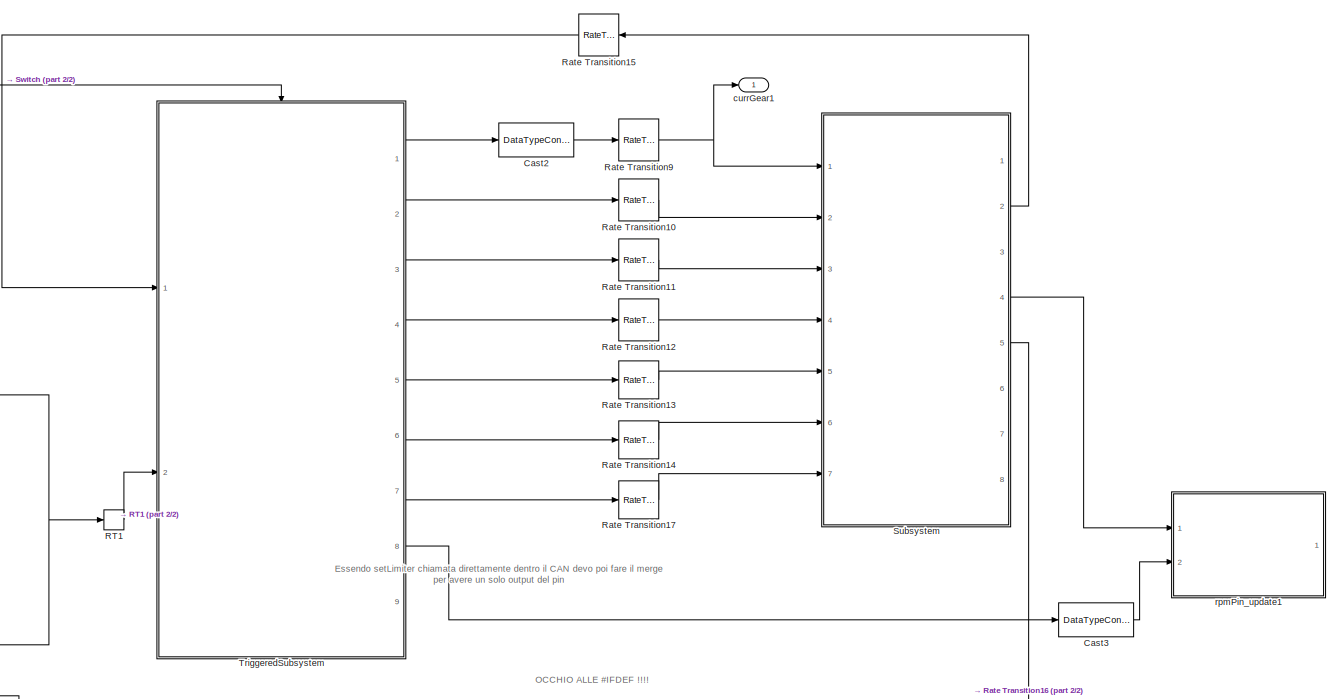
[diagram: root canvas - part 1/2, right side, full height]
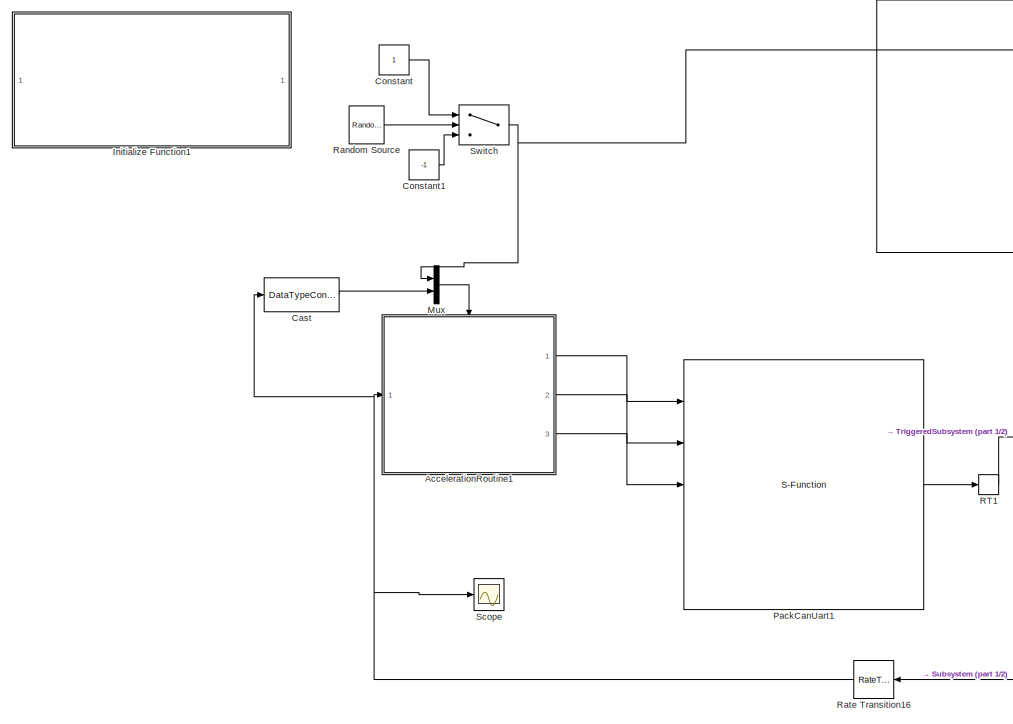
[diagram: root canvas - part 2/2, left side, full height]
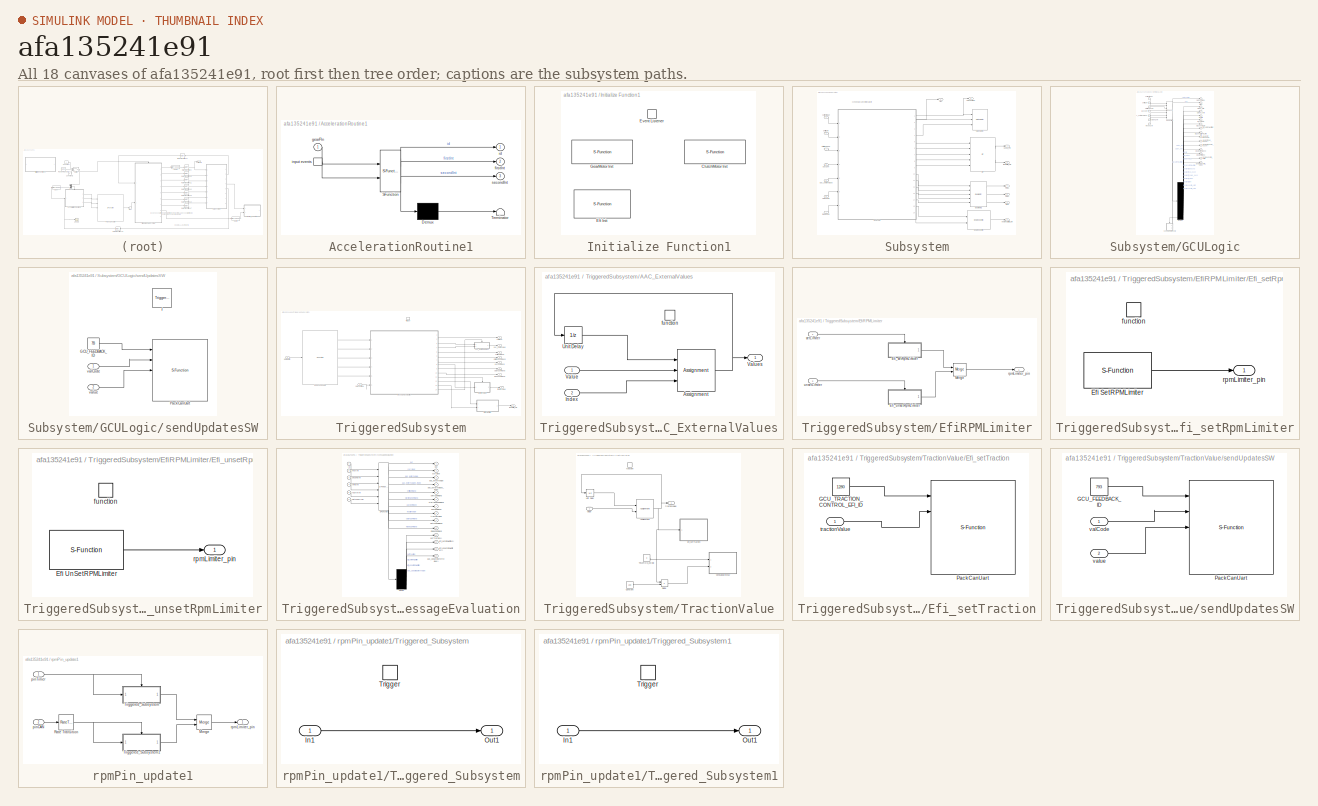
[diagram: thumbnail index - all 18 canvases of the model, root first then tree order]
MODEL slx_afa135241e91
KIND model
CONFIG AbsTol = auto
CONFIG EnableMultiTasking = off
CONFIG FixedStep = 0.001
CONFIG MaxStep = auto
CONFIG MinStep = auto
CONFIG RelTol = 1e-3
CONFIG SampleTimeConstraint = Unconstrained
CONFIG Solver = FixedStepAuto
CONFIG SolverName = FixedStepAuto
CONFIG StartTime = 0.0
CONFIG StopTime = 10.0
BLOCK [SubSystem] AccelerationRoutine1
  ErrorFcn = Stateflow.Translate.translate
  PermitHierarchicalResolution = ExplicitOnly
  Ports = [1, 3, 0, 1]
  RequestExecContextInheritance = off
  SFBlockType = Chart
  SystemSampleTime = [0.01, 0.002]
  TreatAsAtomicUnit = on
BLOCK [Demux] AccelerationRoutine1/ Demux 
  Outputs = 1
  Ports = [1, 1]
BLOCK [S-Function] AccelerationRoutine1/ SFunction 
  EnableBusSupport = on
  FunctionName = sf_sfun
  PortCounts = [2 4]
  Ports = [2, 4]
  SFcnIsStateOwnerBlock = off
  SFunctionDeploymentMode = off
  Tag = Stateflow S-Function GCU_Model_genCode 1
BLOCK [Terminator] AccelerationRoutine1/ Terminator 
BLOCK [Outport] AccelerationRoutine1/firstInt
  IconDisplay = Port number
  Port = 2
BLOCK [Inport] AccelerationRoutine1/gearPin
  IconDisplay = Port number
BLOCK [Outport] AccelerationRoutine1/id
  IconDisplay = Port number
BLOCK [TriggerPort] AccelerationRoutine1/input events
  Ports = [0, 1]
  ShowOutputPort = on
  StatesWhenEnabling = held
  TriggerType = either
  VariantControl = (inherit)
BLOCK [Outport] AccelerationRoutine1/secondInt
  IconDisplay = Port number
  Port = 3
BLOCK [DataTypeConversion] Cast
  OutDataTypeStr = double
  RndMeth = Floor
  SaturateOnIntegerOverflow = off
BLOCK [DataTypeConversion] Cast2
  OutDataTypeStr = uint8
  RndMeth = Floor
  SaturateOnIntegerOverflow = off
BLOCK [DataTypeConversion] Cast3
  OutDataTypeStr = uint8
  RndMeth = Floor
  SaturateOnIntegerOverflow = off
BLOCK [Constant] Constant
BLOCK [Constant] Constant1
  Value = -1
BLOCK [SubSystem] Initialize Function1
  Ports = []
  RequestExecContextInheritance = off
  TreatAsAtomicUnit = on
BLOCK [S-Function] Initialize Function1/ClutchMotor Init
  EnableBusSupport = off
  FunctionName = ClutchMotor_init
  Ports = []
  SFcnIsStateOwnerBlock = off
  SFunctionDeploymentMode = off
BLOCK [S-Function] Initialize Function1/Efi Init
  EnableBusSupport = off
  FunctionName = Efi_init
  Ports = []
  SFcnIsStateOwnerBlock = off
  SFunctionDeploymentMode = off
BLOCK [EventListener] Initialize Function1/Event Listener
  DisableCoverage = on
  EventName = reset
BLOCK [S-Function] Initialize Function1/GearMotor Init
  EnableBusSupport = off
  FunctionName = GearMotor_init
  Ports = []
  SFcnIsStateOwnerBlock = off
  SFunctionDeploymentMode = off
BLOCK [Mux] Mux
  DisplayOption = bar
  Inputs = 2
  Ports = [2, 1]
BLOCK [S-Function] PackCanUart1
  EnableBusSupport = off
  FunctionName = PackCanUART
  Ports = [5, 1]
  SFcnIsStateOwnerBlock = off
  SFunctionDeploymentMode = off
BLOCK [RateTransition] RT1
  Deterministic = off
  OutPortSampleTime = 0.01
BLOCK [Reference] Random Source  REF=dspsrcs4/Random
Source
  Ports = [0, 1]
  SourceBlock = dspsrcs4/Random\nSource
  SourceProductBaseCode = DS
  SourceProductName = DSP System Toolbox
  SourceType = Random Source
  UserDataPersistent = on
BLOCK [RateTransition] Rate Transition10
  Deterministic = off
BLOCK [RateTransition] Rate Transition11
  Deterministic = off
BLOCK [RateTransition] Rate Transition12
  Deterministic = off
BLOCK [RateTransition] Rate Transition13
  Deterministic = off
BLOCK [RateTransition] Rate Transition14
  Deterministic = off
BLOCK [RateTransition] Rate Transition15
  Deterministic = off
BLOCK [RateTransition] Rate Transition16
  Deterministic = off
BLOCK [RateTransition] Rate Transition17
  Deterministic = off
BLOCK [RateTransition] Rate Transition9
  Deterministic = off
BLOCK [Scope] Scope
  Floating = off
  NumInputPorts = 1
  Ports = [1]
  ScopeSpecificationString = Simulink.scopes.TimeScopeBlockCfg('CurrentConfiguration', extmgr.ConfigurationSet(extmgr.Configuration('Core','General UI',true),extmgr.Configuration('Core','Source UI',true),extmgr.Configuration('Sources','WiredSimulink',true),extmgr.Configuration('Visuals','Time Domain',true),extmgr.Configuration('Tools','Plot Navigation',true),extmgr.Configuration('Tools','Measurements',true)),'Version','2018a'...<+1ch>
BLOCK [SubSystem] Subsystem
  Ports = [7, 8]
  RequestExecContextInheritance = off
  SystemSampleTime = 0.001
  TreatAsAtomicUnit = on
BLOCK [Outport] Subsystem/Alive
  IconDisplay = Port number
BLOCK [Reference] Subsystem/ClutchMotor  REF=clutchMotorLib/ClutchMotor
  Ports = [3]
  SourceBlock = clutchMotorLib/ClutchMotor
  SourceProductName = GCU Library
BLOCK [Reference] Subsystem/Efi  REF=efiLib/Efi
  Ports = [5, 2]
  SourceBlock = efiLib/Efi
  SourceProductName = GCU Library
  SourceType = SubSystem
BLOCK [Reference] Subsystem/EngineControl  REF=engineControlLib/EngineControl
  Ports = [2, 1]
  SourceBlock = engineControlLib/EngineControl
  SourceProductName = GCU Library
  SourceType = SubSystem
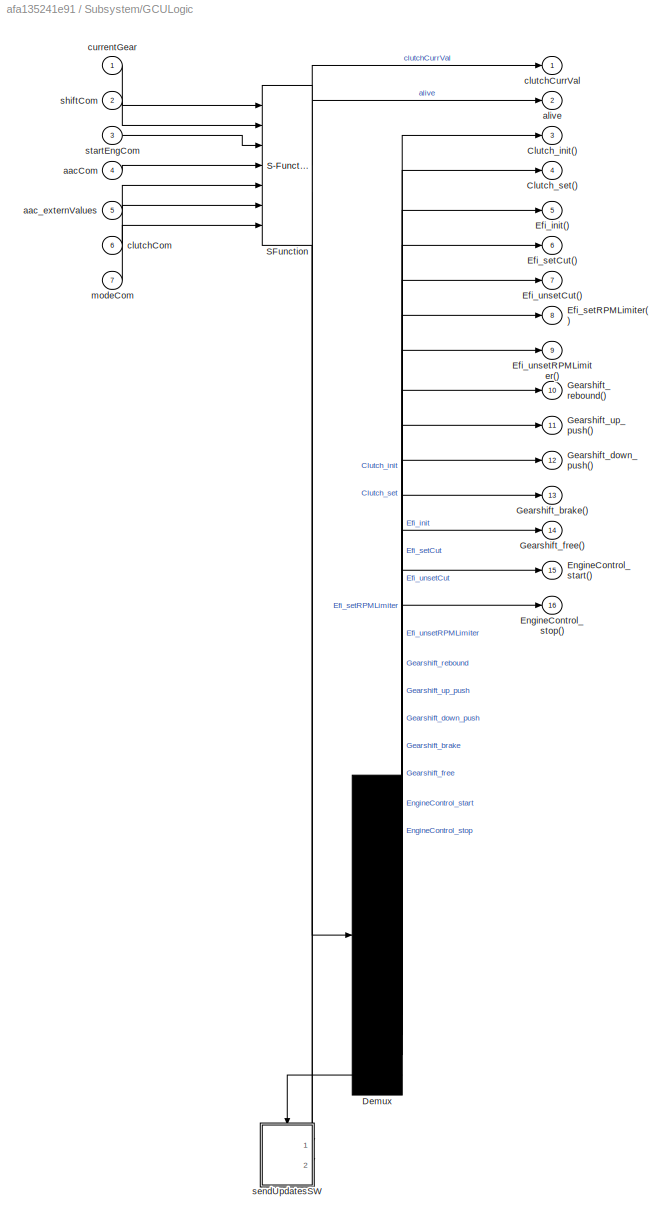
BLOCK [SubSystem] Subsystem/GCULogic
  ErrorFcn = Stateflow.Translate.translate
  PermitHierarchicalResolution = ExplicitOnly
  Ports = [7, 16]
  RequestExecContextInheritance = off
  SFBlockType = Chart
  TreatAsAtomicUnit = on
BLOCK [Demux] Subsystem/GCULogic/ Demux 
  Outputs = 15
  Ports = [1, 15]
BLOCK [S-Function] Subsystem/GCULogic/ SFunction 
  EnableBusSupport = on
  FunctionName = sf_sfun
  PortCounts = [7 5]
  Ports = [7, 5]
  SFcnIsStateOwnerBlock = off
  SFunctionDeploymentMode = off
  Tag = Stateflow S-Function GCU_Model_genCode 4
BLOCK [Outport] Subsystem/GCULogic/Clutch_init()
  IconDisplay = Port number
  Port = 3
BLOCK [Outport] Subsystem/GCULogic/Clutch_set()
  IconDisplay = Port number
  Port = 4
BLOCK [Outport] Subsystem/GCULogic/Efi_init()
  IconDisplay = Port number
  Port = 5
BLOCK [Outport] Subsystem/GCULogic/Efi_setCut()
  IconDisplay = Port number
  Port = 6
BLOCK [Outport] Subsystem/GCULogic/Efi_setRPMLimiter()
  IconDisplay = Port number
  Port = 8
BLOCK [Outport] Subsystem/GCULogic/Efi_unsetCut()
  IconDisplay = Port number
  Port = 7
BLOCK [Outport] Subsystem/GCULogic/Efi_unsetRPMLimiter()
  IconDisplay = Port number
  Port = 9
BLOCK [Outport] Subsystem/GCULogic/EngineControl_start()
  IconDisplay = Port number
  Port = 15
BLOCK [Outport] Subsystem/GCULogic/EngineControl_stop()
  IconDisplay = Port number
  Port = 16
BLOCK [Outport] Subsystem/GCULogic/Gearshift_brake()
  IconDisplay = Port number
  Port = 13
BLOCK [Outport] Subsystem/GCULogic/Gearshift_down_push()
  IconDisplay = Port number
  Port = 12
BLOCK [Outport] Subsystem/GCULogic/Gearshift_free()
  IconDisplay = Port number
  Port = 14
BLOCK [Outport] Subsystem/GCULogic/Gearshift_rebound()
  IconDisplay = Port number
  Port = 10
BLOCK [Outport] Subsystem/GCULogic/Gearshift_up_push()
  IconDisplay = Port number
  Port = 11
BLOCK [Inport] Subsystem/GCULogic/aacCom
  IconDisplay = Port number
  Port = 4
BLOCK [Inport] Subsystem/GCULogic/aac_externValues
  IconDisplay = Port number
  Port = 5
BLOCK [Outport] Subsystem/GCULogic/alive
  IconDisplay = Port number
  Port = 2
BLOCK [Inport] Subsystem/GCULogic/clutchCom
  IconDisplay = Port number
  Port = 6
BLOCK [Outport] Subsystem/GCULogic/clutchCurrVal
  IconDisplay = Port number
BLOCK [Inport] Subsystem/GCULogic/currentGear
  IconDisplay = Port number
BLOCK [Inport] Subsystem/GCULogic/modeCom
  IconDisplay = Port number
  Port = 7
BLOCK [SubSystem] Subsystem/GCULogic/sendUpdatesSW
  Ports = [2, 0, 0, 1]
  PreDeleteFcn = Stateflow.SLINSF.SimulinkMan.removePreDeleteFcn
  RequestExecContextInheritance = off
  UndoDeleteFcn = Stateflow.SLINSF.SimulinkMan.restorePreDeleteFcn
BLOCK [Constant] Subsystem/GCULogic/sendUpdatesSW/GCU_FEEDBACK_ID
  OutDataTypeStr = uint16
  Value = 793
BLOCK [S-Function] Subsystem/GCULogic/sendUpdatesSW/PackCanUart
  EnableBusSupport = off
  FunctionName = PackCanUART
  Ports = [5, 1]
  SFcnIsStateOwnerBlock = off
  SFunctionDeploymentMode = off
BLOCK [TriggerPort] Subsystem/GCULogic/sendUpdatesSW/f
  CopyFcn = Stateflow.SLINSF.SimulinkMan.removeBlockPreDeleteFcn
  Ports = []
  PreDeleteFcn = Stateflow.SLINSF.SimulinkMan.unsafePredeleteFcn
  StatesWhenEnabling = held
  TriggerType = function-call
  VariantControl = (inherit)
BLOCK [Inport] Subsystem/GCULogic/sendUpdatesSW/valCode
  IconDisplay = Port number
  OutDataTypeStr = uint16
  PortDimensions = 1
  SignalType = real
  VarSizeSig = No
BLOCK [Inport] Subsystem/GCULogic/sendUpdatesSW/value
  IconDisplay = Port number
  OutDataTypeStr = uint16
  Port = 2
  PortDimensions = 1
  SignalType = real
  VarSizeSig = No
BLOCK [Inport] Subsystem/GCULogic/shiftCom
  IconDisplay = Port number
  Port = 2
BLOCK [Inport] Subsystem/GCULogic/startEngCom
  IconDisplay = Port number
  Port = 3
BLOCK [Reference] Subsystem/GearMotor1  REF=gearMotorLib/GearMotor
  Ports = [5, 3]
  SourceBlock = gearMotorLib/GearMotor
  SourceProductName = GCU Library
  SourceType = SubSystem
BLOCK [Outport] Subsystem/PinH
  IconDisplay = Port number
  Port = 7
BLOCK [Outport] Subsystem/PinIn1
  IconDisplay = Port number
  Port = 5
BLOCK [Outport] Subsystem/PinIn2
  IconDisplay = Port number
  Port = 6
BLOCK [Inport] Subsystem/aacCom
  IconDisplay = Port number
  Port = 5
BLOCK [Inport] Subsystem/aac_externValues
  IconDisplay = Port number
  Port = 2
BLOCK [Inport] Subsystem/clutchCom
  IconDisplay = Port number
  Port = 6
BLOCK [Outport] Subsystem/clutchCurrVal
  IconDisplay = Port number
  Port = 2
BLOCK [Inport] Subsystem/currentGear
  IconDisplay = Port number
BLOCK [Outport] Subsystem/engineStarter_pin
  IconDisplay = Port number
  Port = 8
BLOCK [Inport] Subsystem/modeCom
  IconDisplay = Port number
  Port = 7
BLOCK [Outport] Subsystem/rpmLimiter_Pin
  IconDisplay = Port number
  Port = 4
BLOCK [Inport] Subsystem/shiftCom
  IconDisplay = Port number
  Port = 3
BLOCK [Inport] Subsystem/startEngCom
  IconDisplay = Port number
  Port = 4
BLOCK [Outport] Subsystem/upCut_Pin
  IconDisplay = Port number
  Port = 3
BLOCK [Switch] Switch
  Criteria = u2 > Threshold
  InputSameDT = off
  SaturateOnIntegerOverflow = off
BLOCK [SubSystem] TriggeredSubsystem
  Ports = [2, 9, 0, 1]
  RequestExecContextInheritance = off
  TreatAsAtomicUnit = on
BLOCK [SubSystem] TriggeredSubsystem/AAC_ExternalValues
  Ports = [2, 1, 0, 1]
  RequestExecContextInheritance = off
  TreatAsAtomicUnit = on
BLOCK [Assignment] TriggeredSubsystem/AAC_ExternalValues/Assignment
  DiagnosticForDimensions = Warning
  IndexMode = Zero-based
  IndexOptions = Index vector (port)
  Indices = 1
  OutputSizes = 1
  Ports = [3, 1]
BLOCK [Inport] TriggeredSubsystem/AAC_ExternalValues/Index
  IconDisplay = Port number
  Port = 2
BLOCK [UnitDelay] TriggeredSubsystem/AAC_ExternalValues/Unit Delay
  InitialCondition = [0,0,0]
  InputProcessing = Elements as channels (sample based)
  SampleTime = -1
BLOCK [Inport] TriggeredSubsystem/AAC_ExternalValues/Value
  IconDisplay = Port number
BLOCK [Outport] TriggeredSubsystem/AAC_ExternalValues/Values
  IconDisplay = Port number
BLOCK [TriggerPort] TriggeredSubsystem/AAC_ExternalValues/function
  Ports = []
  StatesWhenEnabling = held
  TriggerType = function-call
  VariantControl = Variant
BLOCK [SubSystem] TriggeredSubsystem/EfiRPMLimiter
  Ports = [2, 1]
  RequestExecContextInheritance = off
BLOCK [SubSystem] TriggeredSubsystem/EfiRPMLimiter/Efi_setRpmLimiter
  Ports = [0, 1, 0, 1]
  RequestExecContextInheritance = off
  TreatAsAtomicUnit = on
BLOCK [S-Function] TriggeredSubsystem/EfiRPMLimiter/Efi_setRpmLimiter/Efi SetRPMLimiter
  EnableBusSupport = off
  FunctionName = Efi_setRPMLimiter
  Ports = [0, 1]
  SFcnIsStateOwnerBlock = off
  SFunctionDeploymentMode = off
BLOCK [TriggerPort] TriggeredSubsystem/EfiRPMLimiter/Efi_setRpmLimiter/function
  Ports = []
  StatesWhenEnabling = held
  TriggerType = function-call
  VariantControl = Variant
BLOCK [Outport] TriggeredSubsystem/EfiRPMLimiter/Efi_setRpmLimiter/rpmLimiter_pin
  IconDisplay = Port number
BLOCK [SubSystem] TriggeredSubsystem/EfiRPMLimiter/Efi_unsetRpmLimiter
  Ports = [0, 1, 0, 1]
  RequestExecContextInheritance = off
  TreatAsAtomicUnit = on
BLOCK [S-Function] TriggeredSubsystem/EfiRPMLimiter/Efi_unsetRpmLimiter/Efi UnSetRPMLimiter
  EnableBusSupport = off
  FunctionName = Efi_unsetRPMLimiter
  Ports = [0, 1]
  SFcnIsStateOwnerBlock = off
  SFunctionDeploymentMode = off
BLOCK [TriggerPort] TriggeredSubsystem/EfiRPMLimiter/Efi_unsetRpmLimiter/function
  Ports = []
  StatesWhenEnabling = held
  TriggerType = function-call
  VariantControl = Variant
BLOCK [Outport] TriggeredSubsystem/EfiRPMLimiter/Efi_unsetRpmLimiter/rpmLimiter_pin
  IconDisplay = Port number
BLOCK [Merge] TriggeredSubsystem/EfiRPMLimiter/Merge
  Ports = [2, 1]
BLOCK [Outport] TriggeredSubsystem/EfiRPMLimiter/rpmLimiter_pin
  IconDisplay = Port number
BLOCK [Inport] TriggeredSubsystem/EfiRPMLimiter/setLimiter
  IconDisplay = Port number
BLOCK [Inport] TriggeredSubsystem/EfiRPMLimiter/unsetLimiter
  IconDisplay = Port number
  Port = 2
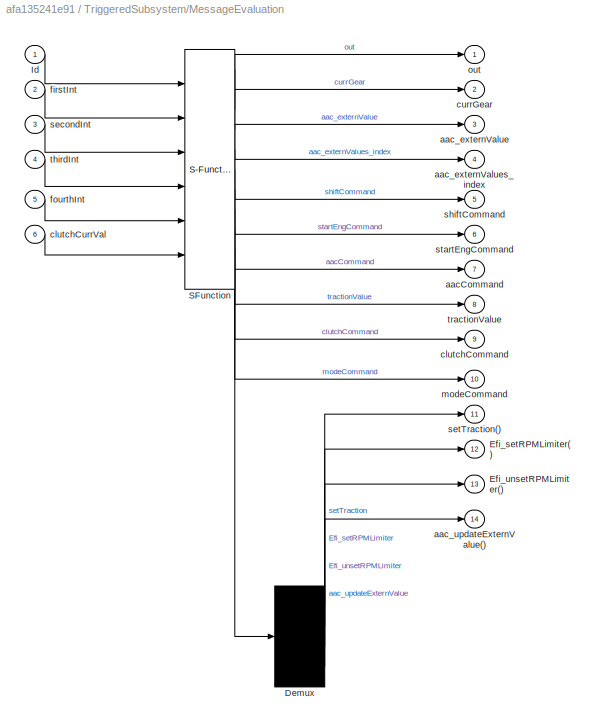
BLOCK [SubSystem] TriggeredSubsystem/MessageEvaluation
  ErrorFcn = Stateflow.Translate.translate
  PermitHierarchicalResolution = ExplicitOnly
  Ports = [6, 14]
  RequestExecContextInheritance = off
  SFBlockType = Chart
  TreatAsAtomicUnit = on
BLOCK [Demux] TriggeredSubsystem/MessageEvaluation/ Demux 
  Ports = [1, 4]
BLOCK [S-Function] TriggeredSubsystem/MessageEvaluation/ SFunction 
  EnableBusSupport = on
  FunctionName = sf_sfun
  PortCounts = [6 11]
  Ports = [6, 11]
  SFcnIsStateOwnerBlock = off
  SFunctionDeploymentMode = off
  Tag = Stateflow S-Function GCU_Model_genCode 2
BLOCK [Outport] TriggeredSubsystem/MessageEvaluation/Efi_setRPMLimiter()
  IconDisplay = Port number
  Port = 12
BLOCK [Outport] TriggeredSubsystem/MessageEvaluation/Efi_unsetRPMLimiter()
  IconDisplay = Port number
  Port = 13
BLOCK [Inport] TriggeredSubsystem/MessageEvaluation/Id
  IconDisplay = Port number
BLOCK [Outport] TriggeredSubsystem/MessageEvaluation/aacCommand
  IconDisplay = Port number
  Port = 7
BLOCK [Outport] TriggeredSubsystem/MessageEvaluation/aac_externValue
  IconDisplay = Port number
  Port = 3
BLOCK [Outport] TriggeredSubsystem/MessageEvaluation/aac_externValues_index
  IconDisplay = Port number
  Port = 4
BLOCK [Outport] TriggeredSubsystem/MessageEvaluation/aac_updateExternValue()
  IconDisplay = Port number
  Port = 14
BLOCK [Outport] TriggeredSubsystem/MessageEvaluation/clutchCommand
  IconDisplay = Port number
  Port = 9
BLOCK [Inport] TriggeredSubsystem/MessageEvaluation/clutchCurrVal
  IconDisplay = Port number
  Port = 6
BLOCK [Outport] TriggeredSubsystem/MessageEvaluation/currGear
  IconDisplay = Port number
  Port = 2
BLOCK [Inport] TriggeredSubsystem/MessageEvaluation/firstInt
  IconDisplay = Port number
  Port = 2
BLOCK [Inport] TriggeredSubsystem/MessageEvaluation/fourthInt
  IconDisplay = Port number
  Port = 5
BLOCK [Outport] TriggeredSubsystem/MessageEvaluation/modeCommand
  IconDisplay = Port number
  Port = 10
BLOCK [Outport] TriggeredSubsystem/MessageEvaluation/out
  IconDisplay = Port number
BLOCK [Inport] TriggeredSubsystem/MessageEvaluation/secondInt
  IconDisplay = Port number
  Port = 3
BLOCK [Outport] TriggeredSubsystem/MessageEvaluation/setTraction()
  IconDisplay = Port number
  Port = 11
BLOCK [Outport] TriggeredSubsystem/MessageEvaluation/shiftCommand
  IconDisplay = Port number
  Port = 5
BLOCK [Outport] TriggeredSubsystem/MessageEvaluation/startEngCommand
  IconDisplay = Port number
  Port = 6
BLOCK [Inport] TriggeredSubsystem/MessageEvaluation/thirdInt
  IconDisplay = Port number
  Port = 4
BLOCK [Outport] TriggeredSubsystem/MessageEvaluation/tractionValue
  IconDisplay = Port number
  Port = 8
BLOCK [SubSystem] TriggeredSubsystem/TractionValue
  Ports = [1, 1, 0, 1]
  RequestExecContextInheritance = off
  TreatAsAtomicUnit = on
BLOCK [Assignment] TriggeredSubsystem/TractionValue/Assignment
  DiagnosticForDimensions = Warning
  IndexMode = Zero-based
  IndexOptions = Index vector (dialog)
  Indices = 0
  OutputSizes = 1
  Ports = [2, 1]
BLOCK [Constant] TriggeredSubsystem/TractionValue/Constant
  OutDataTypeStr = uint16
  Value = 100
BLOCK [Product] TriggeredSubsystem/TractionValue/Divide
  InputSameDT = off
  Inputs = */
  OutDataTypeStr = Inherit: Inherit via internal rule
  Ports = [2, 1]
  RndMeth = Floor
  SaturateOnIntegerOverflow = off
BLOCK [SubSystem] TriggeredSubsystem/TractionValue/Efi_setTraction
  Ports = [1]
  RequestExecContextInheritance = off
BLOCK [Constant] TriggeredSubsystem/TractionValue/Efi_setTraction/GCU_TRACTION_CONTROL_EFI_ID
  OutDataTypeStr = uint16
  Value = 1280
BLOCK [S-Function] TriggeredSubsystem/TractionValue/Efi_setTraction/PackCanUart
  EnableBusSupport = off
  FunctionName = PackCanUART
  Ports = [5, 1]
  SFcnIsStateOwnerBlock = off
  SFunctionDeploymentMode = off
BLOCK [Inport] TriggeredSubsystem/TractionValue/Efi_setTraction/tractionValue
  IconDisplay = Port number
  OutDataTypeStr = uint16
  PortDimensions = 1
  SignalType = real
  VarSizeSig = No
BLOCK [Constant] TriggeredSubsystem/TractionValue/TRACTION_CODE
  OutDataTypeStr = uint16
  Value = 3
BLOCK [UnitDelay] TriggeredSubsystem/TractionValue/Unit Delay
  InputProcessing = Elements as channels (sample based)
  SampleTime = -1
BLOCK [Inport] TriggeredSubsystem/TractionValue/Value
  IconDisplay = Port number
BLOCK [TriggerPort] TriggeredSubsystem/TractionValue/function
  Ports = []
  StatesWhenEnabling = held
  TriggerType = function-call
  VariantControl = Variant
BLOCK [SubSystem] TriggeredSubsystem/TractionValue/sendUpdatesSW
  Ports = [2]
  RequestExecContextInheritance = off
BLOCK [Constant] TriggeredSubsystem/TractionValue/sendUpdatesSW/GCU_FEEDBACK_ID
  OutDataTypeStr = uint16
  Value = 793
BLOCK [S-Function] TriggeredSubsystem/TractionValue/sendUpdatesSW/PackCanUart
  EnableBusSupport = off
  FunctionName = PackCanUART
  Ports = [5, 1]
  SFcnIsStateOwnerBlock = off
  SFunctionDeploymentMode = off
BLOCK [Inport] TriggeredSubsystem/TractionValue/sendUpdatesSW/valCode
  IconDisplay = Port number
  OutDataTypeStr = uint16
  PortDimensions = 1
  SignalType = real
  VarSizeSig = No
BLOCK [Inport] TriggeredSubsystem/TractionValue/sendUpdatesSW/value
  IconDisplay = Port number
  OutDataTypeStr = uint16
  Port = 2
  PortDimensions = 1
  SignalType = real
  VarSizeSig = No
BLOCK [Outport] TriggeredSubsystem/TractionValue/tractionValue
  IconDisplay = Port number
BLOCK [TriggerPort] TriggeredSubsystem/Trigger
  Ports = []
  StatesWhenEnabling = held
  VariantControl = Variant
BLOCK [S-Function] TriggeredSubsystem/UnpackCanUart
  EnableBusSupport = off
  FunctionName = UnpackCanUART
  Ports = [1, 5]
  SFcnIsStateOwnerBlock = off
  SFunctionDeploymentMode = off
BLOCK [Outport] TriggeredSubsystem/aacCommand
  IconDisplay = Port number
  Port = 5
BLOCK [Outport] TriggeredSubsystem/aac_externValue
  IconDisplay = Port number
  Port = 2
BLOCK [Outport] TriggeredSubsystem/clutchCommand
  IconDisplay = Port number
  Port = 6
BLOCK [Inport] TriggeredSubsystem/clutchCurrVal
  IconDisplay = Port number
BLOCK [Outport] TriggeredSubsystem/currGear
  IconDisplay = Port number
BLOCK [Inport] TriggeredSubsystem/dataBuffer
  IconDisplay = Port number
  Port = 2
BLOCK [Outport] TriggeredSubsystem/modeCommand
  IconDisplay = Port number
  Port = 7
BLOCK [Outport] TriggeredSubsystem/rpmLimiter_pin
  IconDisplay = Port number
  Port = 9
BLOCK [Outport] TriggeredSubsystem/shiftCommand
  IconDisplay = Port number
  Port = 3
BLOCK [Outport] TriggeredSubsystem/startEngCommand
  IconDisplay = Port number
  Port = 4
BLOCK [Outport] TriggeredSubsystem/tractionValue
  IconDisplay = Port number
  Port = 8
BLOCK [Outport] currGear1
  IconDisplay = Port number
BLOCK [SubSystem] rpmPin_update1
  Ports = [2, 1]
  RequestExecContextInheritance = off
BLOCK [Merge] rpmPin_update1/Merge
  Ports = [2, 1]
BLOCK [RateTransition] rpmPin_update1/Rate Transition
BLOCK [SubSystem] rpmPin_update1/Triggered_Subsystem
  Ports = [1, 1, 0, 1]
  RequestExecContextInheritance = off
  TreatAsAtomicUnit = on
BLOCK [Inport] rpmPin_update1/Triggered_Subsystem/In1
  IconDisplay = Port number
BLOCK [Outport] rpmPin_update1/Triggered_Subsystem/Out1
  IconDisplay = Port number
BLOCK [TriggerPort] rpmPin_update1/Triggered_Subsystem/Trigger
  Ports = []
  StatesWhenEnabling = held
  TriggerType = either
  VariantControl = Variant
BLOCK [SubSystem] rpmPin_update1/Triggered_Subsystem1
  Ports = [1, 1, 0, 1]
  RequestExecContextInheritance = off
  TreatAsAtomicUnit = on
BLOCK [Inport] rpmPin_update1/Triggered_Subsystem1/In1
  IconDisplay = Port number
BLOCK [Outport] rpmPin_update1/Triggered_Subsystem1/Out1
  IconDisplay = Port number
BLOCK [TriggerPort] rpmPin_update1/Triggered_Subsystem1/Trigger
  Ports = []
  StatesWhenEnabling = held
  TriggerType = either
  VariantControl = Variant
BLOCK [Inport] rpmPin_update1/pinCAN
  IconDisplay = Port number
  Port = 2
BLOCK [Inport] rpmPin_update1/pinTimer
  IconDisplay = Port number
BLOCK [Outport] rpmPin_update1/rpmLimiter_pin
  IconDisplay = Port number
ANNOTATION (root): Essendo setLimiter chiamata direttamente dentro il CAN devo poi fare il merge per avere un solo output del pin
ANNOTATION (root): OCCHIO ALLE #IFDEF !!!!
ANNOTATION Subsystem: Come inizializzare i vettori di variabili?
LINE AccelerationRoutine1:1 -> PackCanUart1:1
LINE AccelerationRoutine1:2 -> PackCanUart1:2
LINE AccelerationRoutine1:3 -> PackCanUart1:3
LINE Cast2:1 -> Rate Transition9:1
LINE Cast3:1 -> rpmPin_update1:2
LINE Cast:1 -> Mux:2
LINE Constant1:1 -> Switch:3
LINE Constant:1 -> Switch:1
LINE Mux:1 -> AccelerationRoutine1:trigger
LINE PackCanUart1:1 -> RT1:1
LINE RT1:1 -> TriggeredSubsystem:2
LINE Random Source:1 -> Switch:2
LINE Rate Transition10:1 -> Subsystem:2
LINE Rate Transition11:1 -> Subsystem:3
LINE Rate Transition12:1 -> Subsystem:4
LINE Rate Transition13:1 -> Subsystem:5
LINE Rate Transition14:1 -> Subsystem:6
LINE Rate Transition15:1 -> TriggeredSubsystem:1
NET Rate Transition16:1 -> AccelerationRoutine1:1, Cast:1, Scope:1
LINE Rate Transition17:1 -> Subsystem:7
NET Rate Transition9:1 -> Subsystem:1, currGear1:1
LINE Subsystem/Efi:1 -> Subsystem/upCut_Pin:1
LINE Subsystem/Efi:2 -> Subsystem/rpmLimiter_Pin:1
LINE Subsystem/EngineControl:1 -> Subsystem/engineStarter_pin:1
NET Subsystem/GCULogic:1 -> Subsystem/ClutchMotor:1, Subsystem/clutchCurrVal:1
LINE Subsystem/GCULogic:10 -> Subsystem/GearMotor1:1
LINE Subsystem/GCULogic:11 -> Subsystem/GearMotor1:2
LINE Subsystem/GCULogic:12 -> Subsystem/GearMotor1:3
LINE Subsystem/GCULogic:13 -> Subsystem/GearMotor1:4
LINE Subsystem/GCULogic:14 -> Subsystem/GearMotor1:5
LINE Subsystem/GCULogic:15 -> Subsystem/EngineControl:1
LINE Subsystem/GCULogic:16 -> Subsystem/EngineControl:2
LINE Subsystem/GCULogic:2 -> Subsystem/Alive:1
LINE Subsystem/GCULogic:3 -> Subsystem/ClutchMotor:2
LINE Subsystem/GCULogic:4 -> Subsystem/ClutchMotor:3
LINE Subsystem/GCULogic:5 -> Subsystem/Efi:1
LINE Subsystem/GCULogic:6 -> Subsystem/Efi:2
LINE Subsystem/GCULogic:7 -> Subsystem/Efi:3
LINE Subsystem/GCULogic:8 -> Subsystem/Efi:4
LINE Subsystem/GCULogic:9 -> Subsystem/Efi:5
LINE Subsystem/GearMotor1:1 -> Subsystem/PinIn1:1
LINE Subsystem/GearMotor1:2 -> Subsystem/PinIn2:1
LINE Subsystem/GearMotor1:3 -> Subsystem/PinH:1
LINE Subsystem/aacCom:1 -> Subsystem/GCULogic:4
LINE Subsystem/aac_externValues:1 -> Subsystem/GCULogic:5
LINE Subsystem/clutchCom:1 -> Subsystem/GCULogic:6
LINE Subsystem/currentGear:1 -> Subsystem/GCULogic:1
LINE Subsystem/modeCom:1 -> Subsystem/GCULogic:7
LINE Subsystem/shiftCom:1 -> Subsystem/GCULogic:2
LINE Subsystem/startEngCom:1 -> Subsystem/GCULogic:3
LINE Subsystem:2 -> Rate Transition15:1
LINE Subsystem:4 -> rpmPin_update1:1
LINE Subsystem:5 -> Rate Transition16:1
NET Switch:1 -> Mux:1, TriggeredSubsystem:trigger
NET TriggeredSubsystem/AAC_ExternalValues/Assignment:1 -> TriggeredSubsystem/AAC_ExternalValues/Unit Delay:1, TriggeredSubsystem/AAC_ExternalValues/Values:1
LINE TriggeredSubsystem/AAC_ExternalValues/Index:1 -> TriggeredSubsystem/AAC_ExternalValues/Assignment:3
LINE TriggeredSubsystem/AAC_ExternalValues/Unit Delay:1 -> TriggeredSubsystem/AAC_ExternalValues/Assignment:1
LINE TriggeredSubsystem/AAC_ExternalValues/Value:1 -> TriggeredSubsystem/AAC_ExternalValues/Assignment:2
LINE TriggeredSubsystem/AAC_ExternalValues:1 -> TriggeredSubsystem/aac_externValue:1
LINE TriggeredSubsystem/EfiRPMLimiter/Efi_setRpmLimiter/Efi SetRPMLimiter:1 -> TriggeredSubsystem/EfiRPMLimiter/Efi_setRpmLimiter/rpmLimiter_pin:1
LINE TriggeredSubsystem/EfiRPMLimiter/Efi_setRpmLimiter:1 -> TriggeredSubsystem/EfiRPMLimiter/Merge:1
LINE TriggeredSubsystem/EfiRPMLimiter/Efi_unsetRpmLimiter/Efi UnSetRPMLimiter:1 -> TriggeredSubsystem/EfiRPMLimiter/Efi_unsetRpmLimiter/rpmLimiter_pin:1
LINE TriggeredSubsystem/EfiRPMLimiter/Efi_unsetRpmLimiter:1 -> TriggeredSubsystem/EfiRPMLimiter/Merge:2
LINE TriggeredSubsystem/EfiRPMLimiter/Merge:1 -> TriggeredSubsystem/EfiRPMLimiter/rpmLimiter_pin:1
LINE TriggeredSubsystem/EfiRPMLimiter/setLimiter:1 -> TriggeredSubsystem/EfiRPMLimiter/Efi_setRpmLimiter:trigger
LINE TriggeredSubsystem/EfiRPMLimiter/unsetLimiter:1 -> TriggeredSubsystem/EfiRPMLimiter/Efi_unsetRpmLimiter:trigger
LINE TriggeredSubsystem/EfiRPMLimiter:1 -> TriggeredSubsystem/rpmLimiter_pin:1
LINE TriggeredSubsystem/MessageEvaluation:10 -> TriggeredSubsystem/modeCommand:1
LINE TriggeredSubsystem/MessageEvaluation:11 -> TriggeredSubsystem/TractionValue:trigger
LINE TriggeredSubsystem/MessageEvaluation:12 -> TriggeredSubsystem/EfiRPMLimiter:1
LINE TriggeredSubsystem/MessageEvaluation:13 -> TriggeredSubsystem/EfiRPMLimiter:2
LINE TriggeredSubsystem/MessageEvaluation:14 -> TriggeredSubsystem/AAC_ExternalValues:trigger
LINE TriggeredSubsystem/MessageEvaluation:2 -> TriggeredSubsystem/currGear:1
LINE TriggeredSubsystem/MessageEvaluation:3 -> TriggeredSubsystem/AAC_ExternalValues:1
LINE TriggeredSubsystem/MessageEvaluation:4 -> TriggeredSubsystem/AAC_ExternalValues:2
LINE TriggeredSubsystem/MessageEvaluation:5 -> TriggeredSubsystem/shiftCommand:1
LINE TriggeredSubsystem/MessageEvaluation:6 -> TriggeredSubsystem/startEngCommand:1
LINE TriggeredSubsystem/MessageEvaluation:7 -> TriggeredSubsystem/aacCommand:1
LINE TriggeredSubsystem/MessageEvaluation:8 -> TriggeredSubsystem/TractionValue:1
LINE TriggeredSubsystem/MessageEvaluation:9 -> TriggeredSubsystem/clutchCommand:1
NET TriggeredSubsystem/TractionValue/Assignment:1 -> TriggeredSubsystem/TractionValue/Divide:1, TriggeredSubsystem/TractionValue/Efi_setTraction:1, TriggeredSubsystem/TractionValue/Unit Delay:1, TriggeredSubsystem/TractionValue/tractionValue:1
LINE TriggeredSubsystem/TractionValue/Constant:1 -> TriggeredSubsystem/TractionValue/Divide:2
LINE TriggeredSubsystem/TractionValue/Divide:1 -> TriggeredSubsystem/TractionValue/sendUpdatesSW:2
LINE TriggeredSubsystem/TractionValue/Efi_setTraction/GCU_TRACTION_CONTROL_EFI_ID:1 -> TriggeredSubsystem/TractionValue/Efi_setTraction/PackCanUart:1
LINE TriggeredSubsystem/TractionValue/Efi_setTraction/tractionValue:1 -> TriggeredSubsystem/TractionValue/Efi_setTraction/PackCanUart:2
LINE TriggeredSubsystem/TractionValue/TRACTION_CODE:1 -> TriggeredSubsystem/TractionValue/sendUpdatesSW:1
LINE TriggeredSubsystem/TractionValue/Unit Delay:1 -> TriggeredSubsystem/TractionValue/Assignment:1
LINE TriggeredSubsystem/TractionValue/Value:1 -> TriggeredSubsystem/TractionValue/Assignment:2
LINE TriggeredSubsystem/TractionValue/sendUpdatesSW/GCU_FEEDBACK_ID:1 -> TriggeredSubsystem/TractionValue/sendUpdatesSW/PackCanUart:1
LINE TriggeredSubsystem/TractionValue/sendUpdatesSW/valCode:1 -> TriggeredSubsystem/TractionValue/sendUpdatesSW/PackCanUart:2
LINE TriggeredSubsystem/TractionValue/sendUpdatesSW/value:1 -> TriggeredSubsystem/TractionValue/sendUpdatesSW/PackCanUart:3
LINE TriggeredSubsystem/TractionValue:1 -> TriggeredSubsystem/tractionValue:1
LINE TriggeredSubsystem/UnpackCanUart:1 -> TriggeredSubsystem/MessageEvaluation:1
LINE TriggeredSubsystem/UnpackCanUart:2 -> TriggeredSubsystem/MessageEvaluation:2
LINE TriggeredSubsystem/UnpackCanUart:3 -> TriggeredSubsystem/MessageEvaluation:3
LINE TriggeredSubsystem/UnpackCanUart:4 -> TriggeredSubsystem/MessageEvaluation:4
LINE TriggeredSubsystem/UnpackCanUart:5 -> TriggeredSubsystem/MessageEvaluation:5
LINE TriggeredSubsystem/clutchCurrVal:1 -> TriggeredSubsystem/MessageEvaluation:6
LINE TriggeredSubsystem/dataBuffer:1 -> TriggeredSubsystem/UnpackCanUart:1
LINE TriggeredSubsystem:1 -> Cast2:1
LINE TriggeredSubsystem:2 -> Rate Transition10:1
LINE TriggeredSubsystem:3 -> Rate Transition11:1
LINE TriggeredSubsystem:4 -> Rate Transition12:1
LINE TriggeredSubsystem:5 -> Rate Transition13:1
LINE TriggeredSubsystem:6 -> Rate Transition14:1
LINE TriggeredSubsystem:7 -> Rate Transition17:1
LINE TriggeredSubsystem:8 -> Cast3:1
LINE rpmPin_update1/Merge:1 -> rpmPin_update1/rpmLimiter_pin:1
NET rpmPin_update1/Rate Transition:1 -> rpmPin_update1/Triggered_Subsystem1:1, rpmPin_update1/Triggered_Subsystem1:trigger
LINE rpmPin_update1/Triggered_Subsystem/In1:1 -> rpmPin_update1/Triggered_Subsystem/Out1:1
LINE rpmPin_update1/Triggered_Subsystem1/In1:1 -> rpmPin_update1/Triggered_Subsystem1/Out1:1
LINE rpmPin_update1/Triggered_Subsystem1:1 -> rpmPin_update1/Merge:2
LINE rpmPin_update1/Triggered_Subsystem:1 -> rpmPin_update1/Merge:1
LINE rpmPin_update1/pinCAN:1 -> rpmPin_update1/Rate Transition:1
NET rpmPin_update1/pinTimer:1 -> rpmPin_update1/Triggered_Subsystem:1, rpmPin_update1/Triggered_Subsystem:trigger
note: NET lines group one-source signal fan-out (src -> all destinations, sorted); 1:1 wires keep LINE
CHART AccelerationRoutine1 states=10 transitions=30
  STATE_LABEL 'Wait'
  STATE_LABEL 'delay'
  STATE_LABEL 'ActivateAac\nentry:\n%%counter =0;\nid = uint16(514);\nfirstInt = uint16(1);\n%%during:counter = counter + 1;'
  STATE_LABEL 'InsertGear\nentry:\nid = uint16(512);\nfirstInt = uint16(400);\nduring:\n checkGear;\n'
  STATE_LABEL 'Ready\nid = uint16(514);\nfirstInt = uint16(2);'
  STATE_LABEL 'EnterAcceleration\nid = uint16(1000);\nfirstInt = uint16(3);'
  STATE_LABEL 'updateData'
  STATE_LABEL '[gearPin == 0 && lastGearPin == 1]'
  STATE_LABEL '{ currGear = currGear + 1;}'
  STATE_LABEL '[gearPin == 1]'
  STATE_LABEL '{rpm = rpm + 150; wheelSpeed = wheelSpeed + 5;}'
  STATE_LABEL '{rpm = 0; wheelSpeed = 0;}'
  STATE_LABEL '[message == 0]'
  STATE_LABEL '{message = 0; id = 774; firstInt = wheelSpeed;}'
  STATE_LABEL '{message =1; id = 773; firstInt = currGear; secondInt = rpm;}'
  STATE_LABEL '{lastGearPin = gearPin;}'
  STATE_LABEL 'DajeDeGas\nentry:\n id = uint16(0);\n rpm = uint16(0);\n wheelSpeed = uint16(0);\nduring:\n updateData;\n'
  STATE_LABEL 'checkGear'
  STATE_LABEL '[gearPin == 0 && lastGearPin ==1]'
  STATE_LABEL '{currGear = currGear + 1;}'
  STATE_LABEL '{lastGearPin = gearPin}'
  STATE_LABEL 'EXIT\nentry:\nid = uint16(513);\nfirstInt = bitshift(uint16(100), 8);'
CHART TriggeredSubsystem/MessageEvaluation states=19 transitions=85
  STATE_LABEL 'GEAR_RPM_UPDATE\nentry:\n currGear = firstInt;\n aac_externValues_index = uint16(aac_values.RPM);\n aac_externValue = secondInt;\n send(aac_updateExternValue);'
  STATE_LABEL 'IDLE'
  STATE_LABEL 'sendStartEngCommand'
  STATE_LABEL '[startEngCommand >= 255]'
  STATE_LABEL '{startEngCommand = startEngCommand + 1;}'
  STATE_LABEL '{startEngCommand = 0}'
  STATE_LABEL 'START_ENGINE\nentry:\n sendStartEngCommand;'
  STATE_LABEL 'SW_GEARSHIFT'
  STATE_LABEL 'SetLimiter\nentry:\n send(Efi_setRPMLimiter);\n'
  STATE_LABEL 'UnsetLimiter\nentry:\n send(Efi_unsetRPMLimiter);'
  STATE_LABEL 'START_SHIFT\nentry:\n sendShiftCommand(firstInt);\n'
  STATE_LABEL '[firstInt== RPM_LIMITER_ON]'
  STATE_LABEL '[firstInt== RPM_LIMITER_OFF]'
  STATE_LABEL 'SetLimiter\nentry:\n send(Efi_setRPMLimiter);\n'
  STATE_LABEL 'UnsetLimiter\nentry:\n send(Efi_unsetRPMLimiter);'
  STATE_LABEL 'START_SHIFT\nentry:\n sendShiftCommand(firstInt);\n'
  STATE_LABEL 'sendShiftCommand(com)'
  STATE_LABEL '[shiftCommand(1) >= 255]'
  STATE_LABEL '{shiftCommand(1) = shiftCommand(1) + 1}'
  STATE_LABEL '{shiftCommand(1) = 0}'
  STATE_LABEL '{shiftCommand(2) = com}'
  STATE_LABEL '[clutchCurrVal ~= 100]'
  STATE_LABEL '[(com == GEAR_COMMAND_NEUTRAL_UP) || (com == GEAR_COMMAND_NEUTRAL_DOWN) ||  (com == GEAR_COMMAND_DOWN) ]'
  STATE_LABEL '{sendAacCommand(STOP_COM)}'
  STATE_LABEL 'sendClutchCommand(com)'
  STATE_LABEL '[clutchCommand(1) >= 255]'
  STATE_LABEL '{clutchCommand(1) = clutchCommand(1) + 1}'
  STATE_LABEL '{clutchCommand(1) = 0}'
  STATE_LABEL '{clutchCommand(2) = com}'
  STATE_LABEL 'IMPORTANTE:controlla che il contatore riparta in automatico come in simulink'
  STATE_LABEL 'WHEEL_SPEED_UPDATE\nentry:\n aac_externValues_index = uint16(aac_values.WHEEL_SPEED)\n aac_externValue = firstInt/10;\n send(aac_updateExternValue);\n'
  STATE_LABEL 'SET_CLUTCH\nentry:\nclutchSetVal = uint8(bitshift(firstInt, -8));\n'
  STATE_LABEL '[clutchSetVal > AAC_CLUTCH_NOISE_LEVEL]'
  STATE_LABEL '{sendAacCommand(STOP_COM);}'
  STATE_LABEL '{sendClutchCommand(clutchSetVal);}'
  STATE_LABEL 'sendAacCommand(com)'
  STATE_LABEL '[aacCommand(1) >= 255]'
  STATE_LABEL '{aacCommand(1) = aacCommand(1) + 1}'
  STATE_LABEL '{aacCommand(1) = 0}'
  STATE_LABEL '{aacCommand(2) = com}'
CHART Subsystem/GCULogic states=81 transitions=153
  STATE_LABEL 'MODES'
  STATE_LABEL 'MANUAL_MODES\nentry:\n lastModeCom = modeCom(1);\nentry, during:\n alive = alive + 1;\n checkShift;\n checkClutch;\n'
  STATE_LABEL 'AUTOCROSS\n\n'
  STATE_LABEL 'ENDURANCE\n\n'
  STATE_LABEL 'SKIDPAD\n\n'
  STATE_LABEL 'INIT'
  STATE_LABEL 'numeri delle modalità da decidere'
  STATE_LABEL 'checkClutch'
  STATE_LABEL '[clutchCom(1) ~= lastClutchCom]'
  STATE_LABEL '[(~in(GEARSHIFT.DOWNSHIFTING) && ~in(NEUTRAL_STATE.SET_NEUTRAL)) || in(NEUTRAL_STATE.UNSET_NEUTRAL)]'
  STATE_LABEL '{lastClutchCom = clutchCom(1);\n Clutch_setValue(clutchCom(2));}'
  STATE_LABEL 'In caso di problema si riporta in endurance'
  STATE_LABEL 'checkShift'
  STATE_LABEL '[shiftCom(1) ~= lastShiftCom]'
  STATE_LABEL '{lastShiftCom = shiftCom(1);}'
  STATE_LABEL '[ shiftCom(2) == GEAR_COMMAND_UP]'
  STATE_LABEL '{send(GearshiftUp, NEUTRAL_STATE);\n send(GearshiftUp, GEARSHIFT);}'
  STATE_LABEL '[shiftCom(2) == GEAR_COMMAND_DOWN]'
  STATE_LABEL '{send(GearshiftDown, NEUTRAL_STATE);\n send(GearshiftDown, GEARSHIFT);}'
  STATE_LABEL '[shiftCom(2) == GEAR_COMMAND_NEUTRAL_UP]'
  STATE_LABEL '{send(GearshiftSetNeutral, NEUTRAL_STATE);\n send(GearshiftUp, GEARSHIFT);}'
  STATE_LABEL '[shiftCom(2) == GEAR_COMMAND_NEUTRAL_DOWN]'
  STATE_LABEL '{send(GearshiftSetNeutral, NEUTRAL_STATE);\n send(GearshiftDown, GEARSHIFT); }'
  STATE_LABEL 'ACCELERATION\nentry:\n lastModeCom = modeCom(1);'
  STATE_LABEL 'AAC'
  STATE_LABEL 'Ricorda load dei default parameters'
  STATE_LABEL 'Forse serve stato OFF, forse no'
  STATE_LABEL 'ATTENZIONE: mancano delle istruzioni in alcuni stati'
  STATE_LABEL "E' giusto che clutch venga settata due volte?"
  STATE_LABEL 'Riguarda funzionamento counter'
  STATE_LABEL 'riguarda la procedura per entrare in start'
  STATE_LABEL 'ACTIVE'
  STATE_LABEL 'Quindi continuo a settare Clutch?'
  STATE_LABEL 'START\nentry:\n aacCounter = AAC_WORK_RATE_ms\n send(Efi_setRPMLimiter);\n Clutch_setValue(uint8(100));\n sendUpdatesSW(ACC_CODE, uint16(1));\nduring:\n aacCounter = aacCounter - 1;'
  STATE_LABEL 'READY\nentry:\n aacCounter = AAC_WORK_RATE_ms\n Clutch_setValue(uint8(100));\nduring:\n aacCounter = aacCounter - 1;\nen, du:\ncheckShift;'
  STATE_LABEL 'SET blip è sbagliato'
  STATE_LABEL 'START_RELEASE\nentry:\n aac_clutchValue = double(getAacParam(RAMP_START));\n Clutch_setValue(uint8(aac_clutchValue));\n aac_dtRelease = getAacParam(RAMP_TIME) / int32(AAC_WORK_RATE_ms);\n aac_clutchStep = double((getAacParam(RAMP_START) - getAacParam(RAMP_END)) * int32(AAC_WORK_RATE_ms)) / double(getAacParam(RAMP_TIME));\n aacCounter = AAC_WORK_RATE_ms;\n sendUpdatesSW(ACC_CODE, uint16(2));\nduring:\n aacC...<+24ch>'
  STATE_LABEL 'RUNNING\nentry:\n aacCounter = AAC_WORK_RATE_ms\n lastShift =  currentGear;\nentry, during:\n aacCheckShift;\n'
  STATE_LABEL 'Continuo a controllare ogni 25ms?'
  STATE_LABEL 'aacCheckShift'
